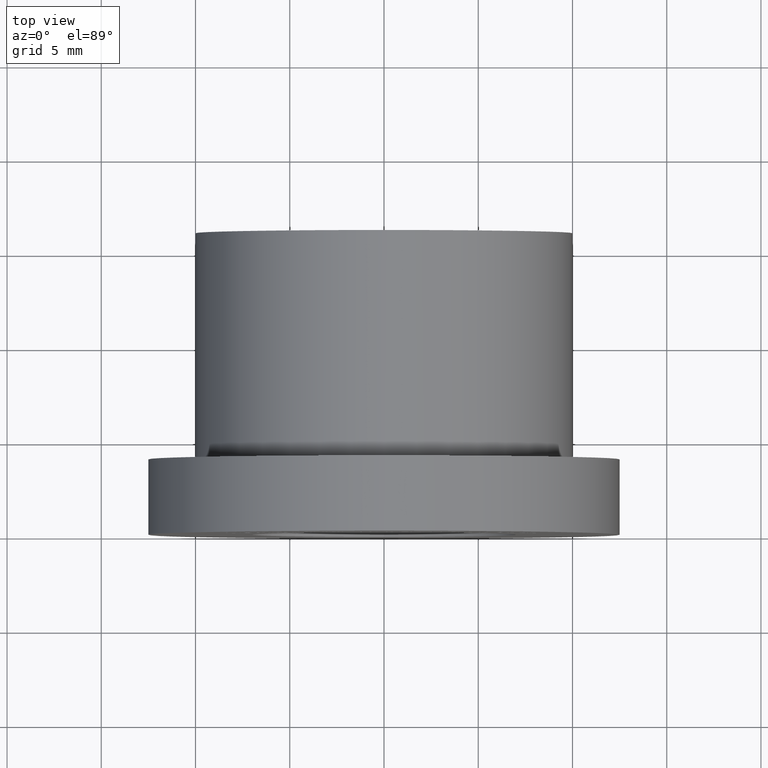
[diagram: clean part render]
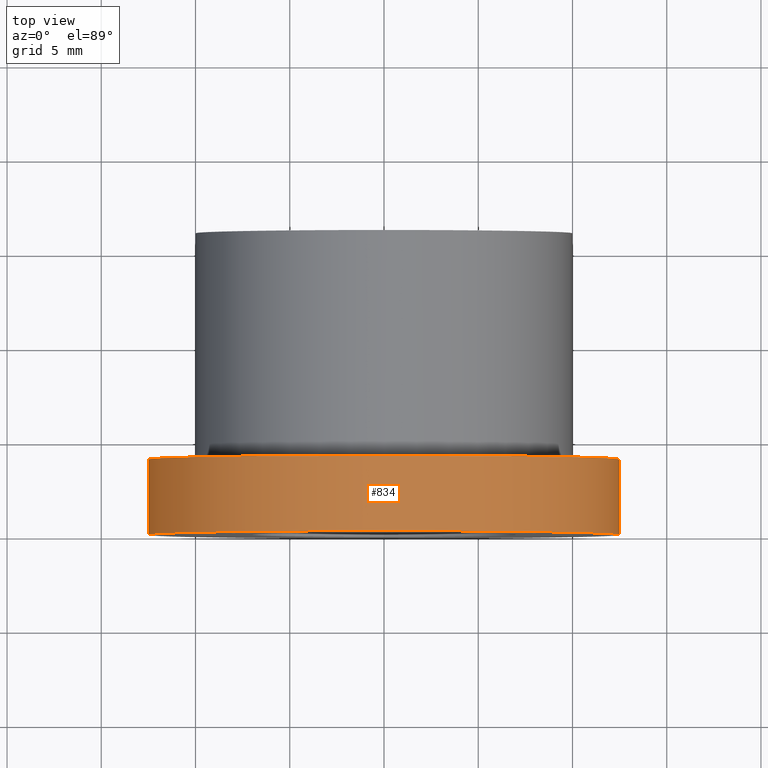
[diagram: same view with one face highlighted and labeled with its STEP entity id]
A machine part, top view. The second image highlights one B-rep face of the part: STEP entity #834.
In plain terms, the highlighted cylindrical surface (bore or boss wall) has radius 12.5 mm, axis along (-0, -1, -0).
Its self-contained STEP definition (entity closure, byte-faithful):
#834 = ADVANCED_FACE ( 'NONE', ( #5730, #3294 ), #5438, .T. ) ;
#1067 = AXIS2_PLACEMENT_3D ( 'NONE', #10191, #6507, #9254 ) ;
#1228 = VERTEX_POINT ( 'NONE', #6126 ) ;
#2401 = EDGE_LOOP ( 'NONE', ( #2503 ) ) ;
#2437 = CARTESIAN_POINT ( 'NONE',  ( 0.0000000000000000000, -7.670935875598353500E-016, -12.50000000000000000 ) ) ;
#2503 = ORIENTED_EDGE ( 'NONE', *, *, #10974, .T. ) ;
#3294 = FACE_OUTER_BOUND ( 'NONE', #6952, .T. ) ;
#3857 = VERTEX_POINT ( 'NONE', #2437 ) ;
#4610 = CARTESIAN_POINT ( 'NONE',  ( 0.0000000000000000000, 4.000000000000000000, 0.0000000000000000000 ) ) ;
#5438 = CYLINDRICAL_SURFACE ( 'NONE', #8708, 12.50000000000000000 ) ;
#5730 = FACE_OUTER_BOUND ( 'NONE', #2401, .T. ) ;
#5904 = ORIENTED_EDGE ( 'NONE', *, *, #9661, .F. ) ;
#6126 = CARTESIAN_POINT ( 'NONE',  ( 0.0000000000000000000, 4.000000000000000000, -12.50000000000000000 ) ) ;
#6336 = DIRECTION ( 'NONE',  ( -0.0000000000000000000, -1.000000000000000000, -0.0000000000000000000 ) ) ;
#6507 = DIRECTION ( 'NONE',  ( -0.0000000000000000000, -1.000000000000000000, -0.0000000000000000000 ) ) ;
#6952 = EDGE_LOOP ( 'NONE', ( #5904 ) ) ;
#7241 = CIRCLE ( 'NONE', #1067, 12.50000000000000000 ) ;
#7696 = DIRECTION ( 'NONE',  ( -0.0000000000000000000, -1.000000000000000000, -0.0000000000000000000 ) ) ;
#7852 = DIRECTION ( 'NONE',  ( 0.0000000000000000000, 0.0000000000000000000, -1.000000000000000000 ) ) ;
#8234 = DIRECTION ( 'NONE',  ( 0.0000000000000000000, 0.0000000000000000000, -1.000000000000000000 ) ) ;
#8708 = AXIS2_PLACEMENT_3D ( 'NONE', #8719, #7696, #7852 ) ;
#8719 = CARTESIAN_POINT ( 'NONE',  ( 0.0000000000000000000, 0.0000000000000000000, 0.0000000000000000000 ) ) ;
#9254 = DIRECTION ( 'NONE',  ( 0.0000000000000000000, 0.0000000000000000000, -1.000000000000000000 ) ) ;
#9661 = EDGE_CURVE ( 'NONE', #3857, #3857, #7241, .T. ) ;
#10191 = CARTESIAN_POINT ( 'NONE',  ( 0.0000000000000000000, -7.670935875598353500E-016, 0.0000000000000000000 ) ) ;
#10221 = CIRCLE ( 'NONE', #11234, 12.50000000000000000 ) ;
#10974 = EDGE_CURVE ( 'NONE', #1228, #1228, #10221, .T. ) ;
#11234 = AXIS2_PLACEMENT_3D ( 'NONE', #4610, #6336, #8234 ) ;